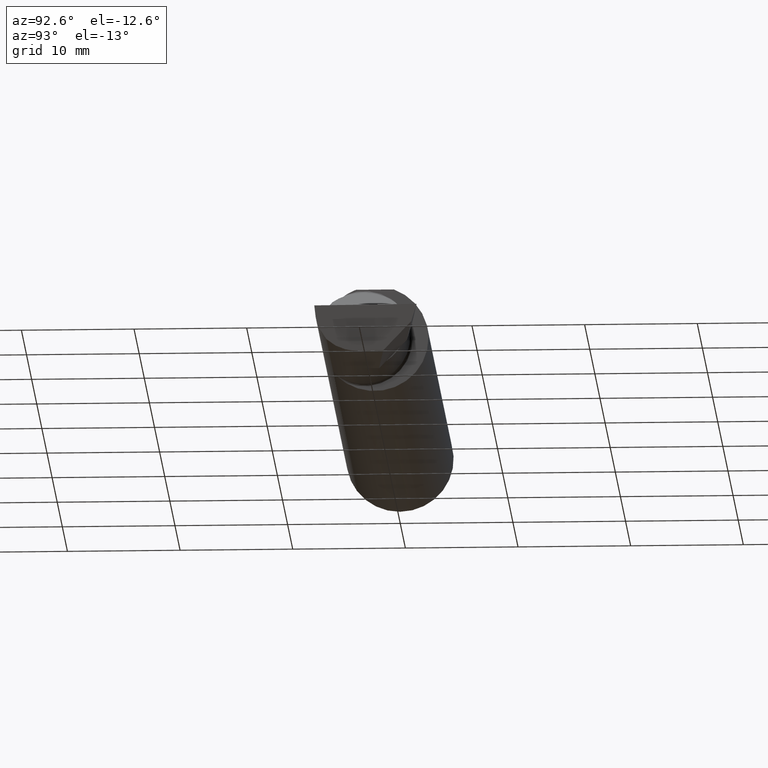
[diagram: clean part render]
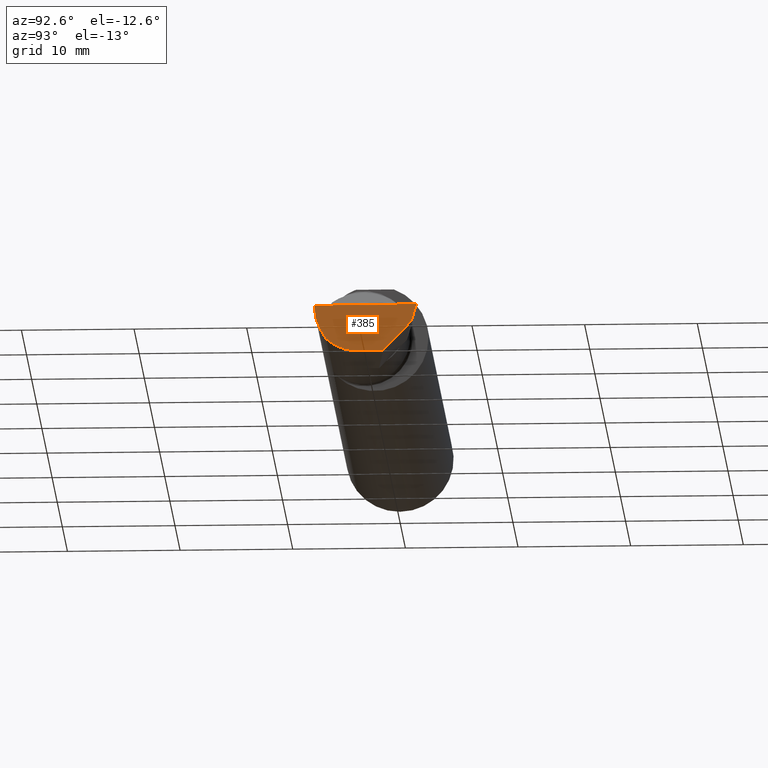
[diagram: same view with one face highlighted and labeled with its STEP entity id]
A machine part, auxiliary view. The second image highlights one B-rep face of the part: STEP entity #385.
In plain terms, the highlighted planar face has unit normal (-0.9922, 0.026, 0.1219).
Its self-contained STEP definition (entity closure, byte-faithful):
#9 = VERTEX_POINT ( 'NONE', #123 ) ;
#23 = EDGE_CURVE ( 'NONE', #203, #224, #77, .T. ) ;
#32 = CARTESIAN_POINT ( 'NONE',  ( 2.477223734188808368, -0.1454917112299465021, -0.1180346748349054287 ) ) ;
#40 = CARTESIAN_POINT ( 'NONE',  ( 2.492483720199198949, 0.1538199878950242960, -0.05760614975163731027 ) ) ;
#44 = DIRECTION ( 'NONE',  ( 0.02617694830791552144, 0.9996573249755561497, -2.665804247648098212E-18 ) ) ;
#60 = EDGE_CURVE ( 'NONE', #224, #432, #200, .T. ) ;
#62 = LINE ( 'NONE', #271, #256 ) ;
#69 = EDGE_CURVE ( 'NONE', #581, #432, #62, .T. ) ;
#77 = LINE ( 'NONE', #40, #94 ) ;
#79 = CARTESIAN_POINT ( 'NONE',  ( 2.474893613600468445, -0.03740000000000000269, -0.1600499999999999701 ) ) ;
#88 = DIRECTION ( 'NONE',  ( 0.1240019227989986178, 0.3022330132596678376, 0.9451342385281217284 ) ) ;
#94 = VECTOR ( 'NONE', #129, 39.37007874015748854 ) ;
#106 = VERTEX_POINT ( 'NONE', #116 ) ;
#116 = CARTESIAN_POINT ( 'NONE',  ( 2.477223734188808368, -0.1454917112299465021, -0.1180346748349054287 ) ) ;
#123 = CARTESIAN_POINT ( 'NONE',  ( 2.474893613600468445, -0.03740000000000000269, -0.1600499999999999701 ) ) ;
#124 = CARTESIAN_POINT ( 'NONE',  ( 2.492127980275578913, 0.1514633278254541859, -0.05999999999999999084 ) ) ;
#125 = ORIENTED_EDGE ( 'NONE', *, *, #23, .T. ) ;
#129 = DIRECTION ( 'NONE',  ( 0.1053106618242490577, 0.6976485211320153645, 0.7086580314005129777 ) ) ;
#133 = EDGE_CURVE ( 'NONE', #203, #9, #556, .T. ) ;
#180 = CARTESIAN_POINT ( 'NONE',  ( 2.500188977433833504, 0.1711105994646693884, 0.001440373173034959625 ) ) ;
#200 = LINE ( 'NONE', #180, #310 ) ;
#203 = VERTEX_POINT ( 'NONE', #404 ) ;
#212 = CARTESIAN_POINT ( 'NONE',  ( 2.472657716785286119, -0.1026153499216720943, -0.1643501480114536728 ) ) ;
#224 = VERTEX_POINT ( 'NONE', #124 ) ;
#256 = VECTOR ( 'NONE', #44, 39.37007874015748854 ) ;
#260 = CARTESIAN_POINT ( 'NONE',  ( 2.500000000000034195, 0.1706500000000318595, 9.290684216734176359E-14 ) ) ;
#270 = FACE_OUTER_BOUND ( 'NONE', #574, .T. ) ;
#271 = CARTESIAN_POINT ( 'NONE',  ( 2.488992440003207296, -0.2497117568972554158, 6.943408617627041469E-17 ) ) ;
#275 = CARTESIAN_POINT ( 'NONE',  ( 2.490625440078237940, -0.1873499999999999888, 6.926778495256700803E-17 ) ) ;
#278 = VECTOR ( 'NONE', #305, 39.37007874015748854 ) ;
#279 = CARTESIAN_POINT ( 'NONE',  ( 2.480648201915109485, -0.1728409665178087251, -0.08432347972837191119 ) ) ;
#291 =( BOUNDED_CURVE ( )  B_SPLINE_CURVE ( 3, ( #530, #512, #550, #79 ),
 .UNSPECIFIED., .F., .F. ) 
 B_SPLINE_CURVE_WITH_KNOTS ( ( 4, 4 ),
 ( 5.751779107031791405, 6.493234751459990406 ),
 .UNSPECIFIED. ) 
 CURVE ( )  GEOMETRIC_REPRESENTATION_ITEM ( )  RATIONAL_B_SPLINE_CURVE ( ( 1.000000000000000000, 0.9547092712975354667, 0.9547092712975354667, 1.000000000000000000 ) ) 
 REPRESENTATION_ITEM ( '' )  );
#303 = CARTESIAN_POINT ( 'NONE',  ( 2.474910817315467693, -0.03674301662998676749, -0.1600499999999999701 ) ) ;
#305 = DIRECTION ( 'NONE',  ( -0.02617694830791551450, -0.9996573249755561497, 0.0000000000000000000 ) ) ;
#310 = VECTOR ( 'NONE', #88, 39.37007874015748854 ) ;
#313 = CARTESIAN_POINT ( 'NONE',  ( 2.485293537526806595, -0.1873500000000000998, -0.04340998088356429196 ) ) ;
#332 = DIRECTION ( 'NONE',  ( -0.9922060308645401783, 0.02598182930473518990, 0.1218693434052012803 ) ) ;
#337 = EDGE_CURVE ( 'NONE', #106, #9, #291, .T. ) ;
#349 = ORIENTED_EDGE ( 'NONE', *, *, #133, .F. ) ;
#365 = ORIENTED_EDGE ( 'NONE', *, *, #337, .T. ) ;
#366 = AXIS2_PLACEMENT_3D ( 'NONE', #212, #332, #583 ) ;
#385 = ADVANCED_FACE ( 'NONE', ( #270 ), #529, .F. ) ;
#404 = CARTESIAN_POINT ( 'NONE',  ( 2.477259974483429161, 0.05296767626088545039, -0.1600499999999999701 ) ) ;
#432 = VERTEX_POINT ( 'NONE', #260 ) ;
#436 =( BOUNDED_CURVE ( )  B_SPLINE_CURVE ( 3, ( #32, #279, #313, #275 ),
 .UNSPECIFIED., .F., .F. ) 
 B_SPLINE_CURVE_WITH_KNOTS ( ( 4, 4 ),
 ( 0.6791649766272935818, 1.360746882514492606 ),
 .UNSPECIFIED. ) 
 CURVE ( )  GEOMETRIC_REPRESENTATION_ITEM ( )  RATIONAL_B_SPLINE_CURVE ( ( 1.000000000000000000, 0.9616603987079548332, 0.9616603987079548332, 1.000000000000000000 ) ) 
 REPRESENTATION_ITEM ( '' )  );
#438 = EDGE_CURVE ( 'NONE', #106, #581, #436, .T. ) ;
#477 = ORIENTED_EDGE ( 'NONE', *, *, #60, .T. ) ;
#512 = CARTESIAN_POINT ( 'NONE',  ( 2.474646882977779683, -0.1156304438478837071, -0.1453804992321581779 ) ) ;
#519 = ORIENTED_EDGE ( 'NONE', *, *, #69, .F. ) ;
#529 = PLANE ( 'NONE',  #366 ) ;
#530 = CARTESIAN_POINT ( 'NONE',  ( 2.477223734188808368, -0.1454917112299465021, -0.1180346748349054287 ) ) ;
#541 = CARTESIAN_POINT ( 'NONE',  ( 2.490625440078237940, -0.1873499999999999888, 6.926778495256700803E-17 ) ) ;
#550 = CARTESIAN_POINT ( 'NONE',  ( 2.473833329693936101, -0.07789060880782651408, -0.1600499999999999701 ) ) ;
#556 = LINE ( 'NONE', #303, #278 ) ;
#560 = ORIENTED_EDGE ( 'NONE', *, *, #438, .F. ) ;
#574 = EDGE_LOOP ( 'NONE', ( #365, #349, #125, #477, #519, #560 ) ) ;
#581 = VERTEX_POINT ( 'NONE', #541 ) ;
#583 = DIRECTION ( 'NONE',  ( 0.1219104985253368356, 0.0000000000000000000, 0.9925410975618610410 ) ) ;